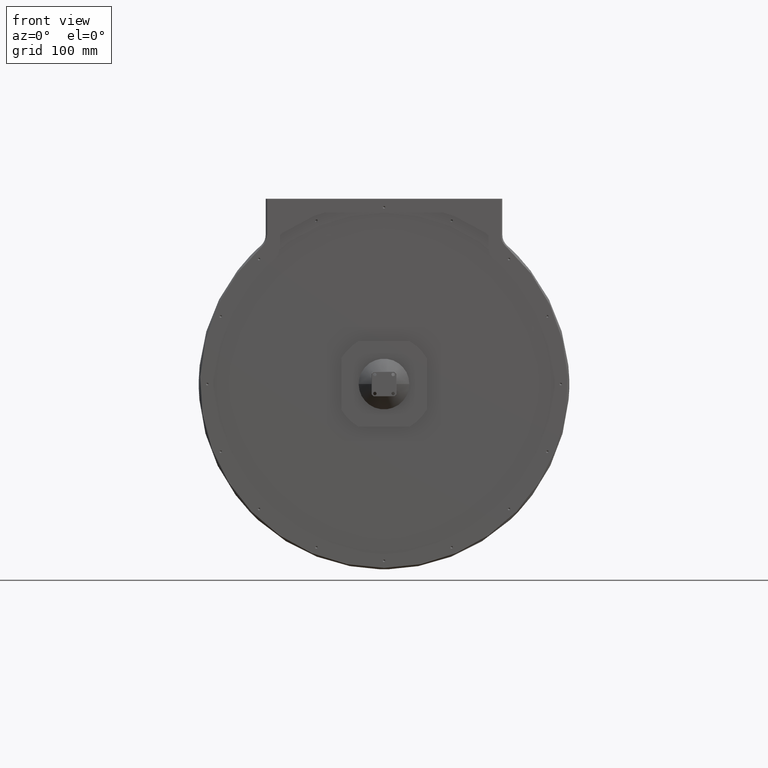
[diagram: clean part render]
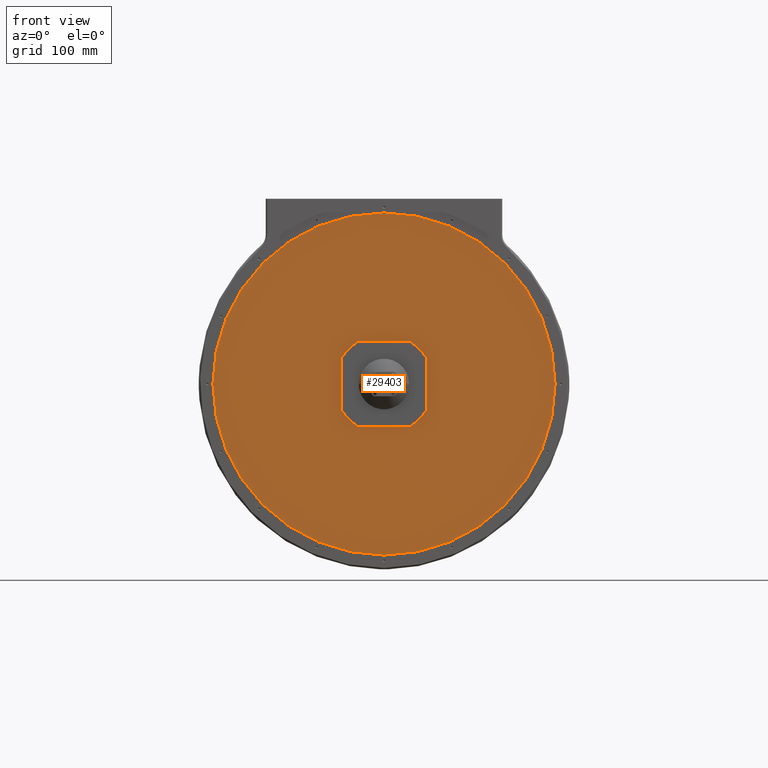
[diagram: same view with one face highlighted and labeled with its STEP entity id]
A machine part, front view. The second image highlights one B-rep face of the part: STEP entity #29403.
In plain terms, the highlighted planar face has unit normal (-0, -1, -0).
Its self-contained STEP definition (entity closure, byte-faithful):
#1162 = VECTOR ( 'NONE', #37116, 1000.000000000000000 ) ;
#1271 = ORIENTED_EDGE ( 'NONE', *, *, #40040, .T. ) ;
#2069 = ORIENTED_EDGE ( 'NONE', *, *, #27530, .T. ) ;
#2409 = AXIS2_PLACEMENT_3D ( 'NONE', #8878, #36048, #13440 ) ;
#3452 = LINE ( 'NONE', #13923, #26412 ) ;
#4389 = CARTESIAN_POINT ( 'NONE',  ( -22.89525059919636263, -171.4500000000000171, -38.09999999999998721 ) ) ;
#8073 = EDGE_CURVE ( 'NONE', #14762, #26782, #40450, .T. ) ;
#8234 = VERTEX_POINT ( 'NONE', #26257 ) ;
#8367 = LINE ( 'NONE', #23841, #45118 ) ;
#8878 = CARTESIAN_POINT ( 'NONE',  ( 3.469446951953612611E-15, -171.4500000000000171, 3.469451288136939082E-15 ) ) ;
#9558 = CIRCLE ( 'NONE', #41138, 44.45000000000000284 ) ;
#9696 = EDGE_LOOP ( 'NONE', ( #30967, #32142, #18484, #1271, #34072, #2069, #25899, #35985 ) ) ;
#9809 = VERTEX_POINT ( 'NONE', #46362 ) ;
#9887 = CIRCLE ( 'NONE', #26918, 152.4000000000000057 ) ;
#10625 = EDGE_CURVE ( 'NONE', #30459, #44549, #8367, .T. ) ;
#12539 = VERTEX_POINT ( 'NONE', #42501 ) ;
#13440 = DIRECTION ( 'NONE',  ( -1.000000000000000000, 0.000000000000000000, 0.000000000000000000 ) ) ;
#13923 = CARTESIAN_POINT ( 'NONE',  ( -38.10000000000001563, -171.4500000000000171, -3.469442615770290085E-15 ) ) ;
#14762 = VERTEX_POINT ( 'NONE', #39099 ) ;
#14890 = DIRECTION ( 'NONE',  ( 1.322431144675073446E-38, 1.000000000000000000, -2.208461945956739495E-23 ) ) ;
#16244 = DIRECTION ( 'NONE',  ( -1.000000000000000000, 2.957376150576802293E-39, -1.821231995776174986E-16 ) ) ;
#17177 = CARTESIAN_POINT ( 'NONE',  ( 5.192187599100379972E-15, -171.4499999999999886, 0.000000000000000000 ) ) ;
#17700 = DIRECTION ( 'NONE',  ( 1.322431144675073446E-38, 1.000000000000000000, -2.208461945956739495E-23 ) ) ;
#18207 = DIRECTION ( 'NONE',  ( -1.000000000000000000, 0.000000000000000000, 0.000000000000000000 ) ) ;
#18484 = ORIENTED_EDGE ( 'NONE', *, *, #8073, .T. ) ;
#18665 = VERTEX_POINT ( 'NONE', #25673 ) ;
#19585 = ORIENTED_EDGE ( 'NONE', *, *, #22858, .F. ) ;
#20899 = CARTESIAN_POINT ( 'NONE',  ( 0.000000000000000000, -171.4499999999999886, 3.786408006445868043E-21 ) ) ;
#21370 = CIRCLE ( 'NONE', #27854, 44.45000000000000284 ) ;
#22858 = EDGE_CURVE ( 'NONE', #9809, #47144, #26379, .T. ) ;
#23479 = EDGE_CURVE ( 'NONE', #12539, #18665, #3452, .T. ) ;
#23841 = CARTESIAN_POINT ( 'NONE',  ( 1.040834085586083941E-14, -171.4500000000000171, -38.09999999999999432 ) ) ;
#24303 = CIRCLE ( 'NONE', #2409, 44.45000000000000284 ) ;
#24400 = VERTEX_POINT ( 'NONE', #41998 ) ;
#24483 = FACE_OUTER_BOUND ( 'NONE', #43887, .T. ) ;
#24725 = DIRECTION ( 'NONE',  ( 1.015706816131500148E-21, 2.208461945956740964E-23, -1.000000000000000000 ) ) ;
#24970 = PLANE ( 'NONE',  #34052 ) ;
#25673 = CARTESIAN_POINT ( 'NONE',  ( -38.10000000000001563, -171.4500000000000171, 22.89525059919633776 ) ) ;
#25899 = ORIENTED_EDGE ( 'NONE', *, *, #10625, .T. ) ;
#26257 = CARTESIAN_POINT ( 'NONE',  ( 38.10000000000000853, -171.4500000000000171, 22.89525059919631644 ) ) ;
#26379 = CIRCLE ( 'NONE', #37713, 152.4000000000000057 ) ;
#26412 = VECTOR ( 'NONE', #26567, 1000.000000000000000 ) ;
#26567 = DIRECTION ( 'NONE',  ( -1.821231995776174986E-16, 2.208461945956739788E-23, 1.000000000000000000 ) ) ;
#26779 = AXIS2_PLACEMENT_3D ( 'NONE', #37968, #14890, #45805 ) ;
#26782 = VERTEX_POINT ( 'NONE', #37742 ) ;
#26918 = AXIS2_PLACEMENT_3D ( 'NONE', #40083, #32237, #47679 ) ;
#27530 = EDGE_CURVE ( 'NONE', #24400, #30459, #9558, .T. ) ;
#27854 = AXIS2_PLACEMENT_3D ( 'NONE', #36996, #17700, #18207 ) ;
#29249 = CIRCLE ( 'NONE', #26779, 44.45000000000000284 ) ;
#29403 = ADVANCED_FACE ( 'NONE', ( #40423, #24483 ), #24970, .T. ) ;
#29410 = DIRECTION ( 'NONE',  ( 1.322431144675073446E-38, 1.000000000000000000, -2.208461945956739495E-23 ) ) ;
#30459 = VERTEX_POINT ( 'NONE', #36677 ) ;
#30967 = ORIENTED_EDGE ( 'NONE', *, *, #23479, .T. ) ;
#32142 = ORIENTED_EDGE ( 'NONE', *, *, #39887, .T. ) ;
#32237 = DIRECTION ( 'NONE',  ( 1.225952931808312809E-39, 1.000000000000000000, -2.208461945956740964E-23 ) ) ;
#32459 = CARTESIAN_POINT ( 'NONE',  ( 3.469446951953612611E-15, -171.4500000000000171, 3.469451288136939082E-15 ) ) ;
#32961 = ORIENTED_EDGE ( 'NONE', *, *, #33322, .F. ) ;
#33141 = DIRECTION ( 'NONE',  ( 1.225952931808312809E-39, 1.000000000000000000, -2.208461945956740964E-23 ) ) ;
#33322 = EDGE_CURVE ( 'NONE', #47144, #9809, #9887, .T. ) ;
#34052 = AXIS2_PLACEMENT_3D ( 'NONE', #20899, #36404, #24725 ) ;
#34072 = ORIENTED_EDGE ( 'NONE', *, *, #49730, .T. ) ;
#35985 = ORIENTED_EDGE ( 'NONE', *, *, #50084, .T. ) ;
#36048 = DIRECTION ( 'NONE',  ( 1.322431144675073446E-38, 1.000000000000000000, -2.208461945956739495E-23 ) ) ;
#36404 = DIRECTION ( 'NONE',  ( -1.225908068811279289E-39, -1.000000000000000000, -2.208461945956740964E-23 ) ) ;
#36632 = CARTESIAN_POINT ( 'NONE',  ( 38.10000000000001563, -171.4500000000000171, 1.734723909595140333E-14 ) ) ;
#36677 = CARTESIAN_POINT ( 'NONE',  ( 22.89525059919636618, -171.4500000000000171, -38.09999999999998721 ) ) ;
#36996 = CARTESIAN_POINT ( 'NONE',  ( 3.469446951953612611E-15, -171.4500000000000171, 3.469451288136939082E-15 ) ) ;
#37116 = DIRECTION ( 'NONE',  ( 3.642463991552350958E-16, -2.208461945956739788E-23, -1.000000000000000000 ) ) ;
#37713 = AXIS2_PLACEMENT_3D ( 'NONE', #17177, #33141, #48605 ) ;
#37742 = CARTESIAN_POINT ( 'NONE',  ( 22.89525059919632710, -171.4500000000000171, 38.10000000000001563 ) ) ;
#37968 = CARTESIAN_POINT ( 'NONE',  ( 3.469446951953612611E-15, -171.4500000000000171, 3.469451288136939082E-15 ) ) ;
#39099 = CARTESIAN_POINT ( 'NONE',  ( -22.89525059919632355, -171.4500000000000171, 38.10000000000002984 ) ) ;
#39625 = CARTESIAN_POINT ( 'NONE',  ( 5.192187599100379972E-15, -171.4499999999999886, -152.4000000000000057 ) ) ;
#39887 = EDGE_CURVE ( 'NONE', #18665, #14762, #24303, .T. ) ;
#40040 = EDGE_CURVE ( 'NONE', #26782, #8234, #29249, .T. ) ;
#40083 = CARTESIAN_POINT ( 'NONE',  ( 5.192187599100379972E-15, -171.4499999999999886, 0.000000000000000000 ) ) ;
#40198 = CARTESIAN_POINT ( 'NONE',  ( 3.469446951953612611E-15, -171.4500000000000171, 38.10000000000002984 ) ) ;
#40423 = FACE_BOUND ( 'NONE', #9696, .T. ) ;
#40450 = LINE ( 'NONE', #40198, #45962 ) ;
#40945 = DIRECTION ( 'NONE',  ( 1.000000000000000000, -6.979497708007330774E-39, 0.000000000000000000 ) ) ;
#41029 = DIRECTION ( 'NONE',  ( -1.000000000000000000, 0.000000000000000000, 0.000000000000000000 ) ) ;
#41138 = AXIS2_PLACEMENT_3D ( 'NONE', #32459, #29410, #41029 ) ;
#41998 = CARTESIAN_POINT ( 'NONE',  ( 38.10000000000002274, -171.4499999999999886, -22.89525059919629868 ) ) ;
#42501 = CARTESIAN_POINT ( 'NONE',  ( -38.10000000000000853, -171.4500000000000171, -22.89525059919633776 ) ) ;
#43887 = EDGE_LOOP ( 'NONE', ( #32961, #19585 ) ) ;
#44549 = VERTEX_POINT ( 'NONE', #4389 ) ;
#45118 = VECTOR ( 'NONE', #16244, 1000.000000000000000 ) ;
#45805 = DIRECTION ( 'NONE',  ( -1.000000000000000000, 0.000000000000000000, 0.000000000000000000 ) ) ;
#45962 = VECTOR ( 'NONE', #40945, 1000.000000000000000 ) ;
#46362 = CARTESIAN_POINT ( 'NONE',  ( -1.347142961990528595E-14, -171.4499999999999886, 152.4000000000000057 ) ) ;
#47144 = VERTEX_POINT ( 'NONE', #39625 ) ;
#47679 = DIRECTION ( 'NONE',  ( 0.000000000000000000, 0.000000000000000000, -1.000000000000000000 ) ) ;
#48605 = DIRECTION ( 'NONE',  ( 0.000000000000000000, 0.000000000000000000, -1.000000000000000000 ) ) ;
#49016 = LINE ( 'NONE', #36632, #1162 ) ;
#49730 = EDGE_CURVE ( 'NONE', #8234, #24400, #49016, .T. ) ;
#50084 = EDGE_CURVE ( 'NONE', #44549, #12539, #21370, .T. ) ;